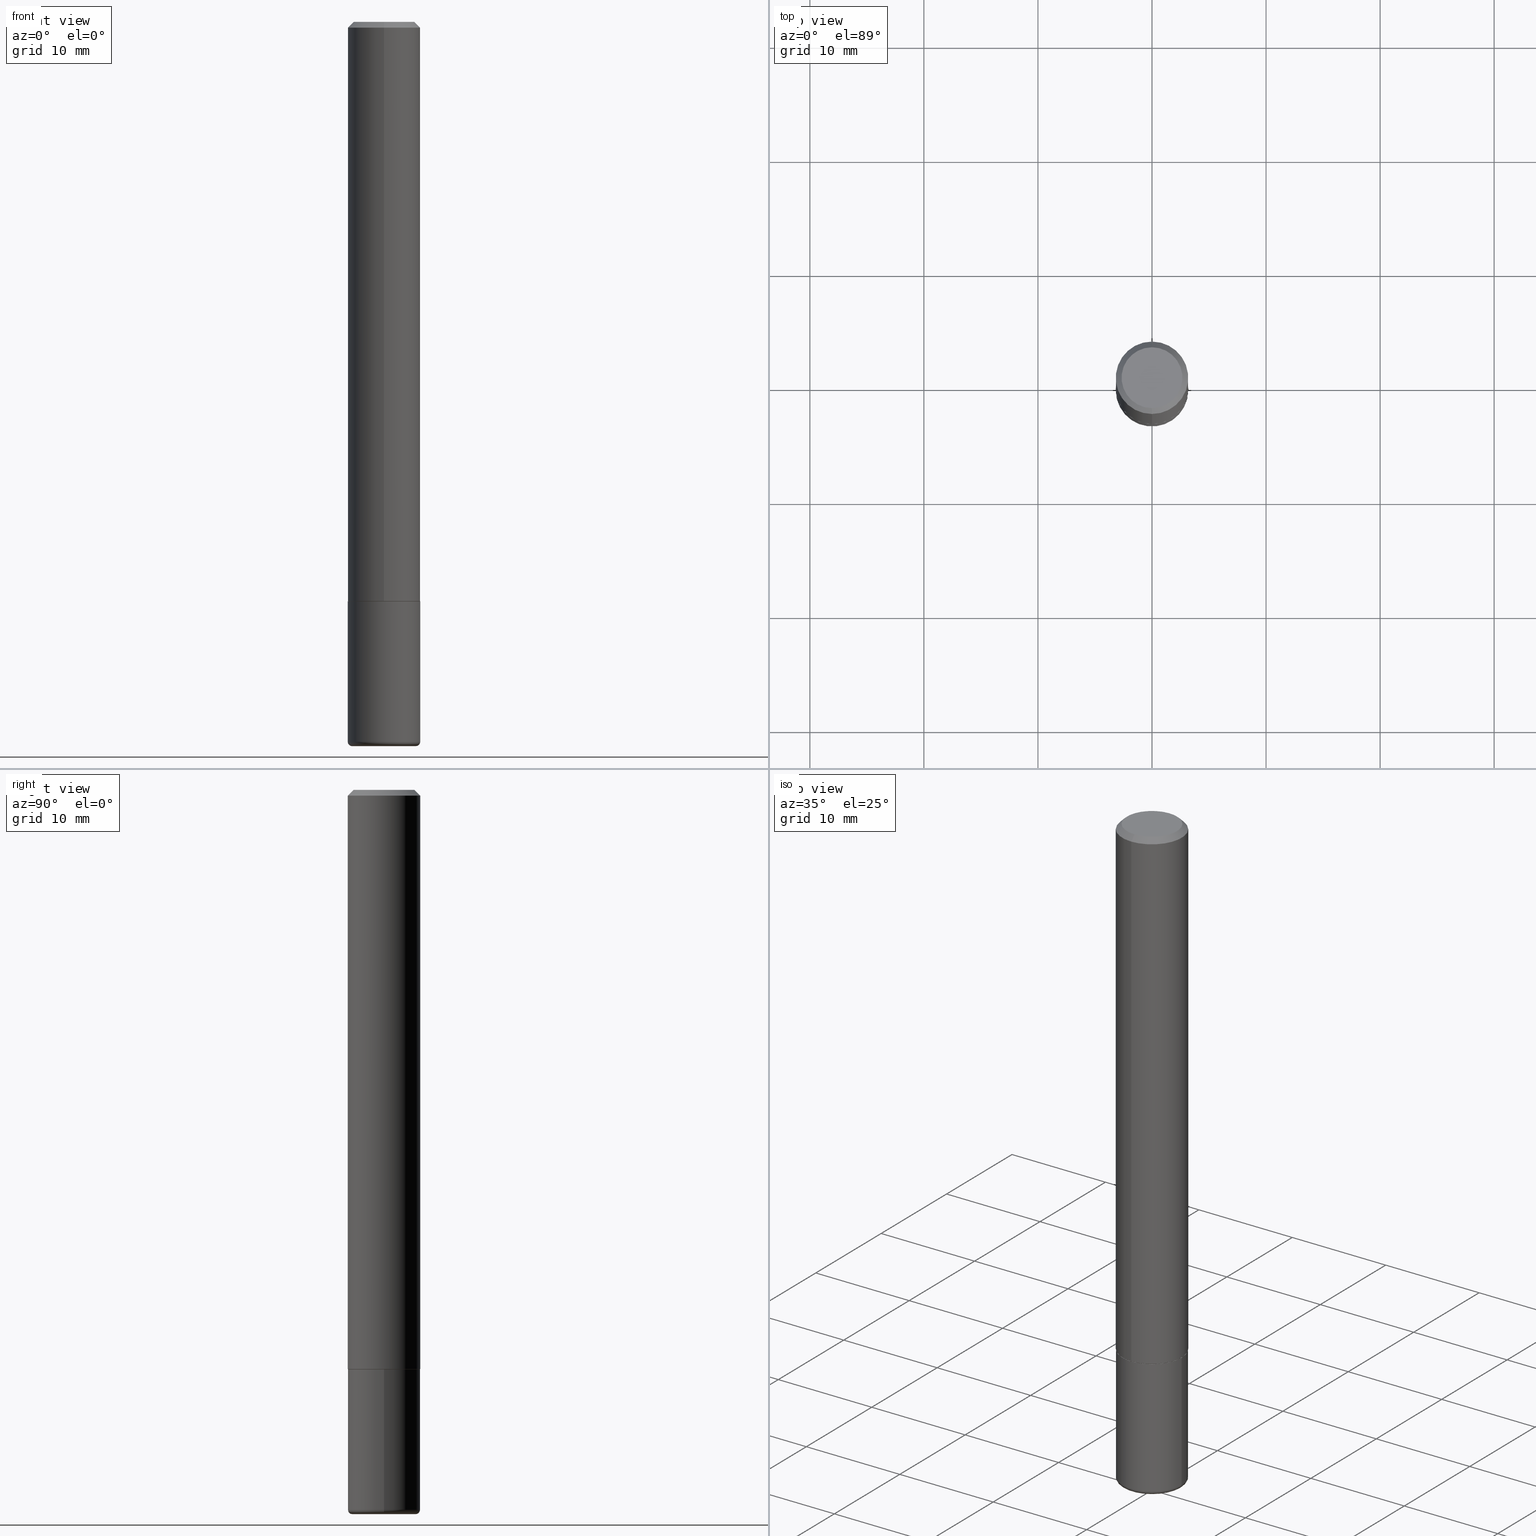
[diagram: canonical four-view strip — front | top / right | iso, engineering-drawing reading convention]
A machine part, canonical four-view strip (front | top / right | iso — engineering-drawing reading convention). The complete STEP part file that produces these views, byte-faithful:
ISO-10303-21;
HEADER;
FILE_DESCRIPTION (( 'STEP AP203' ),
    '1' );
FILE_NAME ('37185.STEP',
    '2024-03-01T21:32:21',
    ( '' ),
    ( '' ),
    'SwSTEP 2.0',
    'SolidWorks 2023',
    '' );
FILE_SCHEMA (( 'CONFIG_CONTROL_DESIGN' ));
ENDSEC;

DATA;
#1 = PERSON_AND_ORGANIZATION ( #67, #317 ) ;
#2 = CARTESIAN_POINT ( 'NONE',  ( 4.891055843871264462E-31, -6.982793363447569119E-17, -0.02000000000000002470 ) ) ;
#3 = ORIENTED_EDGE ( 'NONE', *, *, #380, .T. ) ;
#4 = DIRECTION ( 'NONE',  ( 0.000000000000000000, 0.000000000000000000, 1.000000000000000000 ) ) ;
#5 = EDGE_LOOP ( 'NONE', ( #384, #319, #265, #154 ) ) ;
#6 = APPLICATION_PROTOCOL_DEFINITION ( 'international standard', 'config_control_design', 1994, #239 ) ;
#7 = CALENDAR_DATE ( 2024, 1, 3 ) ;
#8 = CIRCLE ( 'NONE', #136, 0.1049999999999999406 ) ;
#9 = APPROVAL_PERSON_ORGANIZATION ( #22, #197, #87 ) ;
#10 = ORIENTED_EDGE ( 'NONE', *, *, #362, .T. ) ;
#11 = MANIFOLD_SOLID_BREP ( 'Body-Move/Copy2[1]', #114 ) ;
#12 = PLANE ( 'NONE',  #104 ) ;
#13 = VECTOR ( 'NONE', #21, 39.37007874015748143 ) ;
#14 = PRODUCT_DEFINITION ( 'UNKNOWN', '', #200, #173 ) ;
#15 = APPROVAL_STATUS ( 'not_yet_approved' ) ;
#16 = CIRCLE ( 'NONE', #190, 0.1100000000000000283 ) ;
#17 = AXIS2_PLACEMENT_3D ( 'NONE', #86, #339, #179 ) ;
#18 = ADVANCED_FACE ( 'NONE', ( #57 ), #124, .T. ) ;
#19 = VERTEX_POINT ( 'NONE', #110 ) ;
#20 = EDGE_CURVE ( 'NONE', #50, #19, #78, .T. ) ;
#21 = DIRECTION ( 'NONE',  ( 5.024295867788490741E-15, 0.7071067811866103003, 0.7071067811864847341 ) ) ;
#22 = PERSON_AND_ORGANIZATION ( #67, #317 ) ;
#23 = EDGE_CURVE ( 'NONE', #291, #413, #374, .T. ) ;
#24 = FACE_OUTER_BOUND ( 'NONE', #112, .T. ) ;
#25 = LINE ( 'NONE', #410, #307 ) ;
#26 = VERTEX_POINT ( 'NONE', #361 ) ;
#27 = EDGE_CURVE ( 'NONE', #413, #26, #337, .T. ) ;
#28 = COORDINATED_UNIVERSAL_TIME_OFFSET ( 5, 0, .BEHIND. ) ;
#29 = DIRECTION ( 'NONE',  ( -2.445527921935629516E-29, 3.491396681723780295E-15, 1.000000000000000000 ) ) ;
#30 = CARTESIAN_POINT ( 'NONE',  ( 0.1100000000000000006, -9.444457021570706649E-15, -2.484999999999999876 ) ) ;
#31 = ORIENTED_EDGE ( 'NONE', *, *, #120, .F. ) ;
#32 = PERSON_AND_ORGANIZATION ( #67, #317 ) ;
#33 = AXIS2_PLACEMENT_3D ( 'NONE', #370, #159, #328 ) ;
#34 = CARTESIAN_POINT ( 'NONE',  ( 4.888610315949323001E-29, -6.979301966765836019E-15, -1.998999999999999888 ) ) ;
#35 = VERTEX_POINT ( 'NONE', #330 ) ;
#36 = PERSON_AND_ORGANIZATION ( #67, #317 ) ;
#37 = ADVANCED_FACE ( 'NONE', ( #169 ), #12, .F. ) ;
#38 = ORIENTED_EDGE ( 'NONE', *, *, #366, .T. ) ;
#39 = PERSON_AND_ORGANIZATION_ROLE ( 'creator' ) ;
#40 = ORIENTED_EDGE ( 'NONE', *, *, #235, .T. ) ;
#41 = DIRECTION ( 'NONE',  ( -6.982962677686265133E-15, -1.000000000000000000, 3.491396681723779900E-15 ) ) ;
#42 = APPROVAL_ROLE ( '' ) ;
#43 = CC_DESIGN_APPROVAL ( #197, ( #14 ) ) ;
#44 = AXIS2_PLACEMENT_3D ( 'NONE', #274, #301, #146 ) ;
#45 = EDGE_CURVE ( 'NONE', #161, #127, #55, .T. ) ;
#46 = FACE_OUTER_BOUND ( 'NONE', #358, .T. ) ;
#47 = DIRECTION ( 'NONE',  ( 2.438088387897960049E-29, -3.491481338843145188E-15, -1.000000000000000000 ) ) ;
#48 = TOROIDAL_SURFACE ( 'NONE', #234, 0.1100000000000000006, 0.01500000000000011394 ) ;
#49 = DIRECTION ( 'NONE',  ( 4.937700262164540942E-15, 0.7071067811865441310, -0.7071067811865509034 ) ) ;
#50 = VERTEX_POINT ( 'NONE', #309 ) ;
#51 =( CONVERSION_BASED_UNIT ( 'INCH', #237 ) LENGTH_UNIT ( ) NAMED_UNIT ( #377 ) );
#52 = CARTESIAN_POINT ( 'NONE',  ( 4.891055843871264462E-31, -6.982793363447569119E-17, -0.02000000000000002470 ) ) ;
#53 = LINE ( 'NONE', #152, #13 ) ;
#54 = CARTESIAN_POINT ( 'NONE',  ( 6.113672015462842613E-29, -8.728703347107864943E-15, -2.500000000000000000 ) ) ;
#55 = CIRCLE ( 'NONE', #298, 0.1249999999999999584 ) ;
#56 = CARTESIAN_POINT ( 'NONE',  ( 4.891055843871259032E-29, -6.982793363447559801E-15, -2.000000000000000000 ) ) ;
#57 = FACE_OUTER_BOUND ( 'NONE', #94, .T. ) ;
#58 = CARTESIAN_POINT ( 'NONE',  ( 8.881784197001508703E-16, 0.1249999999999932415, -1.999000000000000554 ) ) ;
#59 = ORIENTED_EDGE ( 'NONE', *, *, #144, .F. ) ;
#60 = EDGE_CURVE ( 'NONE', #69, #333, #371, .T. ) ;
#61 = CARTESIAN_POINT ( 'NONE',  ( 0.000000000000000000, 0.000000000000000000, 0.000000000000000000 ) ) ;
#62 = DIRECTION ( 'NONE',  ( -6.982962677686265922E-15, -1.000000000000000000, 3.483106191921936738E-15 ) ) ;
#63 = EDGE_LOOP ( 'NONE', ( #396, #38, #228, #347 ) ) ;
#64 = ADVANCED_FACE ( 'NONE', ( #256 ), #247, .F. ) ;
#65 = AXIS2_PLACEMENT_3D ( 'NONE', #245, #340, #405 ) ;
#66 = AXIS2_PLACEMENT_3D ( 'NONE', #310, #91, #343 ) ;
#67 = PERSON ( 'UNSPECIFIED', 'UNSPECIFIED', 'UNSPECIFIED', ('UNSPECIFIED'), ('UNSPECIFIED'), ('UNSPECIFIED') ) ;
#68 = CARTESIAN_POINT ( 'NONE',  ( 6.113672015462842613E-29, -8.728703347107864943E-15, -2.500000000000000000 ) ) ;
#69 = VERTEX_POINT ( 'NONE', #58 ) ;
#70 = ORIENTED_EDGE ( 'NONE', *, *, #362, .F. ) ;
#71 = DIRECTION ( 'NONE',  ( 2.445527921935629516E-29, -3.491396681723780295E-15, -1.000000000000000000 ) ) ;
#72 = PERSON_AND_ORGANIZATION_ROLE ( 'design_supplier' ) ;
#73 = AXIS2_PLACEMENT_3D ( 'NONE', #395, #290, #158 ) ;
#74 = AXIS2_PLACEMENT_3D ( 'NONE', #402, #255, #100 ) ;
#75 = APPROVAL ( #311, 'UNSPECIFIED' ) ;
#76 = DIRECTION ( 'NONE',  ( 1.000000000000000000, -6.982962677686270655E-15, 0.000000000000000000 ) ) ;
#77 = EDGE_LOOP ( 'NONE', ( #130, #262, #238, #389 ) ) ;
#78 = CIRCLE ( 'NONE', #33, 0.1239999999999999991 ) ;
#79 = AXIS2_PLACEMENT_3D ( 'NONE', #352, #4, #131 ) ;
#80 =( LENGTH_UNIT ( ) NAMED_UNIT ( * ) SI_UNIT ( $, .METRE. ) );
#81 = DIRECTION ( 'NONE',  ( -2.445527921935629516E-29, 3.491396681723780295E-15, 1.000000000000000000 ) ) ;
#82 = AXIS2_PLACEMENT_3D ( 'NONE', #56, #29, #183 ) ;
#83 = CONICAL_SURFACE ( 'NONE', #177, 0.1239999999999999991, 0.7853981633975336552 ) ;
#84 = DIRECTION ( 'NONE',  ( -2.445468806185136597E-29, 3.491481338843145583E-15, 1.000000000000000000 ) ) ;
#85 = EDGE_LOOP ( 'NONE', ( #261, #225, #123, #321 ) ) ;
#86 = CARTESIAN_POINT ( 'NONE',  ( 6.076989983370064174E-29, -8.676331127025216680E-15, -2.484999999999999876 ) ) ;
#87 = APPROVAL_ROLE ( '' ) ;
#88 = CARTESIAN_POINT ( 'NONE',  ( -0.1250000000000000000, 8.881784197001252323E-16, -6.148668862818632227E-30 ) ) ;
#89 = DIRECTION ( 'NONE',  ( -4.937700262164969294E-15, -0.7071067811866054154, 0.7071067811864896191 ) ) ;
#90 = CARTESIAN_POINT ( 'NONE',  ( 8.728703347107834374E-16, 0.1249999999999999029, -0.02000000000000046185 ) ) ;
#91 = DIRECTION ( 'NONE',  ( -2.445468806185136597E-29, 3.491481338843145583E-15, 1.000000000000000000 ) ) ;
#92 = CLOSED_SHELL ( 'NONE', ( #229, #208, #285, #148, #18, #408, #37, #302 ) ) ;
#93 = DATE_TIME_ROLE ( 'creation_date' ) ;
#94 = EDGE_LOOP ( 'NONE', ( #286, #356, #280, #360 ) ) ;
#95 = ORIENTED_EDGE ( 'NONE', *, *, #336, .F. ) ;
#96 = DIRECTION ( 'NONE',  ( -2.445527921935629516E-29, 3.491396681723780295E-15, 1.000000000000000000 ) ) ;
#97 = EDGE_CURVE ( 'NONE', #35, #291, #244, .T. ) ;
#98 = ORIENTED_EDGE ( 'NONE', *, *, #202, .T. ) ;
#99 = DATE_AND_TIME ( #188, #270 ) ;
#100 = DIRECTION ( 'NONE',  ( 1.000000000000000000, -6.982962677686271444E-15, 0.000000000000000000 ) ) ;
#101 = DIRECTION ( 'NONE',  ( -4.851104656540957175E-15, -0.7071067811865490160, -0.7071067811865460184 ) ) ;
#102 = ORIENTED_EDGE ( 'NONE', *, *, #143, .T. ) ;
#103 = COORDINATED_UNIVERSAL_TIME_OFFSET ( 5, 0, .BEHIND. ) ;
#104 = AXIS2_PLACEMENT_3D ( 'NONE', #232, #251, #186 ) ;
#105 = CARTESIAN_POINT ( 'NONE',  ( -8.575622497214406564E-16, -0.1250000000000000278, -0.01999999999999959102 ) ) ;
#106 = ORIENTED_EDGE ( 'NONE', *, *, #368, .T. ) ;
#107 = EDGE_LOOP ( 'NONE', ( #289, #113, #3, #323 ) ) ;
#108 = DIRECTION ( 'NONE',  ( 1.000000000000000000, -6.982962677686264344E-15, 4.883557194083111780E-29 ) ) ;
#109 = EDGE_CURVE ( 'NONE', #351, #267, #8, .T. ) ;
#110 = CARTESIAN_POINT ( 'NONE',  ( 8.846257060213743279E-16, 0.1239999999999930186, -2.000000000000000444 ) ) ;
#111 = VECTOR ( 'NONE', #335, 39.37007874015748143 ) ;
#112 = EDGE_LOOP ( 'NONE', ( #201, #191, #134, #327 ) ) ;
#113 = ORIENTED_EDGE ( 'NONE', *, *, #292, .T. ) ;
#114 = CLOSED_SHELL ( 'NONE', ( #294, #174, #64, #168, #163, #372 ) ) ;
#115 = COORDINATED_UNIVERSAL_TIME_OFFSET ( 5, 0, .BEHIND. ) ;
#116 = FACE_OUTER_BOUND ( 'NONE', #160, .T. ) ;
#117 = DIRECTION ( 'NONE',  ( -1.000000000000000000, 6.982962677686265922E-15, -4.876176775795935793E-29 ) ) ;
#118 = AXIS2_PLACEMENT_3D ( 'NONE', #407, #369, #206 ) ;
#119 = APPROVAL_PERSON_ORGANIZATION ( #348, #75, #359 ) ;
#120 = EDGE_CURVE ( 'NONE', #139, #35, #16, .T. ) ;
#121 = DIRECTION ( 'NONE',  ( -1.000000000000000000, 6.982962677686265922E-15, -4.876176775795935793E-29 ) ) ;
#122 = COORDINATED_UNIVERSAL_TIME_OFFSET ( 5, 0, .BEHIND. ) ;
#123 = ORIENTED_EDGE ( 'NONE', *, *, #326, .F. ) ;
#124 = CYLINDRICAL_SURFACE ( 'NONE', #149, 0.1250000000000001110 ) ;
#125 = LOCAL_TIME ( 16, 32, 21.00000000000000000, #103 ) ;
#126 = DIRECTION ( 'NONE',  ( -6.982962677686265922E-15, -1.000000000000000000, 3.491396681723780295E-15 ) ) ;
#127 = VERTEX_POINT ( 'NONE', #90 ) ;
#128 = DIRECTION ( 'NONE',  ( -2.445468806185136597E-29, 3.491481338843145583E-15, 1.000000000000000000 ) ) ;
#129 = CC_DESIGN_PERSON_AND_ORGANIZATION_ASSIGNMENT ( #1, #72, ( #200 ) ) ;
#130 = ORIENTED_EDGE ( 'NONE', *, *, #202, .F. ) ;
#131 = DIRECTION ( 'NONE',  ( 1.000000000000000000, 0.000000000000000000, 0.000000000000000000 ) ) ;
#132 = CYLINDRICAL_SURFACE ( 'NONE', #341, 0.1250000000000000000 ) ;
#133 = APPLICATION_PROTOCOL_DEFINITION ( 'international standard', 'config_control_design', 1994, #172 ) ;
#134 = ORIENTED_EDGE ( 'NONE', *, *, #235, .F. ) ;
#135 = MECHANICAL_CONTEXT ( 'NONE', #239, 'mechanical' ) ;
#136 = AXIS2_PLACEMENT_3D ( 'NONE', #388, #181, #126 ) ;
#137 = COORDINATED_UNIVERSAL_TIME_OFFSET ( 5, 0, .BEHIND. ) ;
#138 = CARTESIAN_POINT ( 'NONE',  ( 0.000000000000000000, 0.000000000000000000, 0.000000000000000000 ) ) ;
#139 = VERTEX_POINT ( 'NONE', #151 ) ;
#140 = CC_DESIGN_PERSON_AND_ORGANIZATION_ASSIGNMENT ( #226, #39, ( #14 ) ) ;
#141 = CIRCLE ( 'NONE', #364, 0.1049999999999999406 ) ;
#142 = EDGE_CURVE ( 'NONE', #139, #254, #415, .T. ) ;
#143 = EDGE_CURVE ( 'NONE', #333, #69, #221, .T. ) ;
#144 = EDGE_CURVE ( 'NONE', #267, #351, #141, .T. ) ;
#145 = CYLINDRICAL_SURFACE ( 'NONE', #65, 0.1250000000000000000 ) ;
#146 = DIRECTION ( 'NONE',  ( 1.000000000000000000, -6.982962677686270655E-15, 0.000000000000000000 ) ) ;
#147 = PLANE ( 'NONE',  #180 ) ;
#148 = ADVANCED_FACE ( 'NONE', ( #350 ), #230, .T. ) ;
#149 = AXIS2_PLACEMENT_3D ( 'NONE', #382, #272, #41 ) ;
#150 = VECTOR ( 'NONE', #49, 39.37007874015748143 ) ;
#151 = CARTESIAN_POINT ( 'NONE',  ( 0.1100000000000000283, -9.496829241653354912E-15, -2.500000000000000000 ) ) ;
#152 = CARTESIAN_POINT ( 'NONE',  ( 8.810729923425729363E-16, 0.1239999999999930186, -2.000000000000000444 ) ) ;
#153 = DIRECTION ( 'NONE',  ( -2.445527921935629796E-29, 3.491396681723780689E-15, 1.000000000000000000 ) ) ;
#154 = ORIENTED_EDGE ( 'NONE', *, *, #380, .F. ) ;
#155 = DATE_TIME_ROLE ( 'classification_date' ) ;
#156 = DIRECTION ( 'NONE',  ( 1.000000000000000000, -6.982962677686269077E-15, 0.000000000000000000 ) ) ;
#157 = ORIENTED_EDGE ( 'NONE', *, *, #97, .F. ) ;
#158 = DIRECTION ( 'NONE',  ( 1.000000000000000000, -6.982962677686264344E-15, 4.883557194083111780E-29 ) ) ;
#159 = DIRECTION ( 'NONE',  ( -2.445527921935629516E-29, 3.491396681723780295E-15, 1.000000000000000000 ) ) ;
#160 = EDGE_LOOP ( 'NONE', ( #260, #257 ) ) ;
#161 = VERTEX_POINT ( 'NONE', #375 ) ;
#162 = APPROVAL_DATE_TIME ( #414, #197 ) ;
#163 = ADVANCED_FACE ( 'NONE', ( #349 ), #316, .T. ) ;
#164 = EDGE_LOOP ( 'NONE', ( #157, #10, #193, #218 ) ) ;
#165 = AXIS2_PLACEMENT_3D ( 'NONE', #34, #283, #417 ) ;
#166 = CC_DESIGN_APPROVAL ( #75, ( #200 ) ) ;
#167 = SHAPE_DEFINITION_REPRESENTATION ( #329, #334 ) ;
#168 = ADVANCED_FACE ( 'NONE', ( #287 ), #132, .T. ) ;
#169 = FACE_OUTER_BOUND ( 'NONE', #222, .T. ) ;
#170 = CIRCLE ( 'NONE', #250, 0.1249999999999999584 ) ;
#171 = UNCERTAINTY_MEASURE_WITH_UNIT (LENGTH_MEASURE( 1.000000000000000082E-05 ), #51, 'distance_accuracy_value', 'NONE');
#172 = APPLICATION_CONTEXT ( 'configuration controlled 3d designs of mechanical parts and assemblies' ) ;
#173 = DESIGN_CONTEXT ( 'detailed design', #172, 'design' ) ;
#174 = ADVANCED_FACE ( 'NONE', ( #227 ), #48, .T. ) ;
#175 = DIRECTION ( 'NONE',  ( -6.982962677686265922E-15, -1.000000000000000000, 4.406206441393973340E-15 ) ) ;
#176 = AXIS2_PLACEMENT_3D ( 'NONE', #216, #346, #121 ) ;
#177 = AXIS2_PLACEMENT_3D ( 'NONE', #241, #81, #207 ) ;
#178 = FACE_OUTER_BOUND ( 'NONE', #107, .T. ) ;
#179 = DIRECTION ( 'NONE',  ( 1.000000000000000000, -6.982962677686271444E-15, 0.000000000000000000 ) ) ;
#180 = AXIS2_PLACEMENT_3D ( 'NONE', #54, #47, #117 ) ;
#181 = DIRECTION ( 'NONE',  ( -2.445527921935629516E-29, 3.491396681723780295E-15, 1.000000000000000000 ) ) ;
#182 = CARTESIAN_POINT ( 'NONE',  ( 0.1250000000000000555, -9.549201461736000019E-15, -2.484999999999999876 ) ) ;
#183 = DIRECTION ( 'NONE',  ( -6.982962677686265922E-15, -1.000000000000000000, 4.406206441393973340E-15 ) ) ;
#184 = LINE ( 'NONE', #246, #299 ) ;
#185 = DIRECTION ( 'NONE',  ( 2.445527921935629516E-29, -3.491396681723780295E-15, -1.000000000000000000 ) ) ;
#186 = DIRECTION ( 'NONE',  ( -6.982962677686265922E-15, -1.000000000000000000, 3.491396681723780689E-15 ) ) ;
#187 = PRODUCT_RELATED_PRODUCT_CATEGORY ( 'detail', '', ( #363 ) ) ;
#188 = CALENDAR_DATE ( 2024, 1, 3 ) ;
#189 = DIRECTION ( 'NONE',  ( -2.445468806185136597E-29, 3.491481338843145583E-15, 1.000000000000000000 ) ) ;
#190 = AXIS2_PLACEMENT_3D ( 'NONE', #68, #189, #156 ) ;
#191 = ORIENTED_EDGE ( 'NONE', *, *, #23, .T. ) ;
#192 = CALENDAR_DATE ( 2024, 1, 3 ) ;
#193 = ORIENTED_EDGE ( 'NONE', *, *, #142, .T. ) ;
#194 = LINE ( 'NONE', #105, #403 ) ;
#195 = DIRECTION ( 'NONE',  ( -6.982962677686265133E-15, -1.000000000000000000, 3.491396681723779900E-15 ) ) ;
#196 = CONICAL_SURFACE ( 'NONE', #269, 0.1239999999999999991, 0.7853981633975336552 ) ;
#197 = APPROVAL ( #15, 'UNSPECIFIED' ) ;
#198 = DIRECTION ( 'NONE',  ( -6.982962677686265922E-15, -1.000000000000000000, 3.483106191921936738E-15 ) ) ;
#199 = AXIS2_PLACEMENT_3D ( 'NONE', #138, #357, #195 ) ;
#200 = PRODUCT_DEFINITION_FORMATION_WITH_SPECIFIED_SOURCE ( 'ANY', '', #363, .NOT_KNOWN. ) ;
#201 = ORIENTED_EDGE ( 'NONE', *, *, #326, .T. ) ;
#202 = EDGE_CURVE ( 'NONE', #267, #161, #194, .T. ) ;
#203 = CARTESIAN_POINT ( 'NONE',  ( 0.1250000000000000000, -8.728703347107833388E-16, 6.095220969744919741E-30 ) ) ;
#204 =( NAMED_UNIT ( * ) PLANE_ANGLE_UNIT ( ) SI_UNIT ( $, .RADIAN. ) );
#205 = AXIS2_PLACEMENT_3D ( 'NONE', #52, #185, #312 ) ;
#206 = DIRECTION ( 'NONE',  ( 6.982962677686265922E-15, 1.000000000000000000, -3.491396681723780689E-15 ) ) ;
#207 = DIRECTION ( 'NONE',  ( -6.982962677686265922E-15, -1.000000000000000000, 4.406206441393973340E-15 ) ) ;
#208 = ADVANCED_FACE ( 'NONE', ( #354 ), #224, .T. ) ;
#209 = DIRECTION ( 'NONE',  ( -2.445527921935629796E-29, 3.491396681723780689E-15, 1.000000000000000000 ) ) ;
#210 = CARTESIAN_POINT ( 'NONE',  ( -8.728703347107839305E-16, -0.1250000000000001110, 4.364245852154728820E-16 ) ) ;
#211 = AXIS2_PLACEMENT_3D ( 'NONE', #318, #71, #399 ) ;
#212 = LOCAL_TIME ( 16, 32, 21.00000000000000000, #137 ) ;
#213 = CARTESIAN_POINT ( 'NONE',  ( 4.888610315949323001E-29, -6.979301966765836019E-15, -1.998999999999999888 ) ) ;
#214 = APPROVAL_DATE_TIME ( #412, #331 ) ;
#215 = CC_DESIGN_DATE_AND_TIME_ASSIGNMENT ( #386, #93, ( #14 ) ) ;
#216 = CARTESIAN_POINT ( 'NONE',  ( 4.890937612370273194E-29, -6.982962677686291165E-15, -2.000000000000000000 ) ) ;
#217 = DIRECTION ( 'NONE',  ( -6.982962677686265922E-15, -1.000000000000000000, 3.491396681723780295E-15 ) ) ;
#218 = ORIENTED_EDGE ( 'NONE', *, *, #366, .F. ) ;
#219 = PERSON_AND_ORGANIZATION_ROLE ( 'classification_officer' ) ;
#220 = DIRECTION ( 'NONE',  ( -2.445468806185136597E-29, 3.491481338843145583E-15, 1.000000000000000000 ) ) ;
#221 = CIRCLE ( 'NONE', #165, 0.1250000000000002498 ) ;
#222 = EDGE_LOOP ( 'NONE', ( #252, #284 ) ) ;
#223 = CALENDAR_DATE ( 2024, 1, 3 ) ;
#224 = CYLINDRICAL_SURFACE ( 'NONE', #199, 0.1250000000000001110 ) ;
#225 = ORIENTED_EDGE ( 'NONE', *, *, #97, .T. ) ;
#226 = PERSON_AND_ORGANIZATION ( #67, #317 ) ;
#227 = FACE_OUTER_BOUND ( 'NONE', #85, .T. ) ;
#228 = ORIENTED_EDGE ( 'NONE', *, *, #242, .T. ) ;
#229 = ADVANCED_FACE ( 'NONE', ( #322 ), #196, .T. ) ;
#230 = CONICAL_SURFACE ( 'NONE', #211, 0.1249999999999999584, 0.7853981633974469467 ) ;
#231 = SECURITY_CLASSIFICATION ( '', '', #390 ) ;
#232 = CARTESIAN_POINT ( 'NONE',  ( 4.891055843871259032E-29, -6.982793363447559801E-15, -2.000000000000000000 ) ) ;
#233 = DIRECTION ( 'NONE',  ( -2.445527921935629516E-29, 3.491396681723780295E-15, 1.000000000000000000 ) ) ;
#234 = AXIS2_PLACEMENT_3D ( 'NONE', #259, #220, #108 ) ;
#235 = EDGE_CURVE ( 'NONE', #26, #413, #379, .T. ) ;
#236 = APPROVAL_PERSON_ORGANIZATION ( #36, #331, #42 ) ;
#237 = LENGTH_MEASURE_WITH_UNIT ( LENGTH_MEASURE( 0.02539999999999999897 ), #80 );
#238 = ORIENTED_EDGE ( 'NONE', *, *, #336, .T. ) ;
#239 = APPLICATION_CONTEXT ( 'configuration controlled 3d designs of mechanical parts and assemblies' ) ;
#240 = PLANE ( 'NONE',  #118 ) ;
#241 = CARTESIAN_POINT ( 'NONE',  ( 4.891055843871259032E-29, -6.982793363447559801E-15, -2.000000000000000000 ) ) ;
#242 = EDGE_CURVE ( 'NONE', #254, #26, #273, .T. ) ;
#243 = DIRECTION ( 'NONE',  ( -2.445468806185136877E-29, 3.491481338843145188E-15, 1.000000000000000000 ) ) ;
#244 = CIRCLE ( 'NONE', #305, 0.01500000000000011394 ) ;
#245 = CARTESIAN_POINT ( 'NONE',  ( 0.000000000000000000, 0.000000000000000000, 0.000000000000000000 ) ) ;
#246 = CARTESIAN_POINT ( 'NONE',  ( 8.881784197001258240E-16, 0.1250000000000001110, -4.364245852154728820E-16 ) ) ;
#247 = PLANE ( 'NONE',  #176 ) ;
#248 = CARTESIAN_POINT ( 'NONE',  ( 8.728703347107834374E-16, 0.1249999999999999029, -0.02000000000000046185 ) ) ;
#249 = APPROVAL_DATE_TIME ( #99, #75 ) ;
#250 = AXIS2_PLACEMENT_3D ( 'NONE', #400, #233, #198 ) ;
#251 = DIRECTION ( 'NONE',  ( -2.445527921935628955E-29, 3.491396681723780689E-15, 1.000000000000000000 ) ) ;
#252 = ORIENTED_EDGE ( 'NONE', *, *, #20, .F. ) ;
#253 = CARTESIAN_POINT ( 'NONE',  ( -1.356822259440641185E-45, 1.937088794533382726E-31, 5.548177337377198142E-17 ) ) ;
#254 = VERTEX_POINT ( 'NONE', #182 ) ;
#255 = DIRECTION ( 'NONE',  ( -2.445468806185136597E-29, 3.491481338843145583E-15, 1.000000000000000000 ) ) ;
#256 = FACE_OUTER_BOUND ( 'NONE', #314, .T. ) ;
#257 = ORIENTED_EDGE ( 'NONE', *, *, #144, .T. ) ;
#258 = PERSON_AND_ORGANIZATION ( #67, #317 ) ;
#259 = CARTESIAN_POINT ( 'NONE',  ( 6.076989983370064174E-29, -8.676331127025216680E-15, -2.484999999999999876 ) ) ;
#260 = ORIENTED_EDGE ( 'NONE', *, *, #109, .T. ) ;
#261 = ORIENTED_EDGE ( 'NONE', *, *, #120, .T. ) ;
#262 = ORIENTED_EDGE ( 'NONE', *, *, #109, .F. ) ;
#263 = CIRCLE ( 'NONE', #82, 0.1239999999999999991 ) ;
#264 = CIRCLE ( 'NONE', #17, 0.1249999999999999861 ) ;
#265 = ORIENTED_EDGE ( 'NONE', *, *, #143, .F. ) ;
#266 = CC_DESIGN_PERSON_AND_ORGANIZATION_ASSIGNMENT ( #258, #378, ( #200 ) ) ;
#267 = VERTEX_POINT ( 'NONE', #373 ) ;
#268 = ORIENTED_EDGE ( 'NONE', *, *, #27, .T. ) ;
#269 = AXIS2_PLACEMENT_3D ( 'NONE', #293, #303, #175 ) ;
#270 = LOCAL_TIME ( 16, 32, 21.00000000000000000, #122 ) ;
#271 = CARTESIAN_POINT ( 'NONE',  ( -0.1250000000000000555, -7.788152707325091448E-15, -2.484999999999999876 ) ) ;
#272 = DIRECTION ( 'NONE',  ( -2.445527921935629516E-29, 3.491396681723780295E-15, 1.000000000000000000 ) ) ;
#273 = LINE ( 'NONE', #203, #111 ) ;
#274 = CARTESIAN_POINT ( 'NONE',  ( 4.890937612370273194E-29, -6.982962677686291165E-15, -2.000000000000000000 ) ) ;
#275 = LOCAL_TIME ( 16, 32, 21.00000000000000000, #115 ) ;
#276 = CARTESIAN_POINT ( 'NONE',  ( 8.030407079339205337E-16, 0.1049999999999999406, -3.111148782072246978E-16 ) ) ;
#277 = DIRECTION ( 'NONE',  ( -1.000000000000000000, 7.105427357601001859E-15, 0.000000000000000000 ) ) ;
#278 = CC_DESIGN_PERSON_AND_ORGANIZATION_ASSIGNMENT ( #32, #219, ( #231 ) ) ;
#279 = LINE ( 'NONE', #210, #342 ) ;
#280 = ORIENTED_EDGE ( 'NONE', *, *, #394, .T. ) ;
#281 = MANIFOLD_SOLID_BREP ( 'Body-Move/Copy2[2]', #92 ) ;
#282 = CIRCLE ( 'NONE', #74, 0.1249999999999999861 ) ;
#283 = DIRECTION ( 'NONE',  ( -2.445527921935629516E-29, 3.491396681723780295E-15, 1.000000000000000000 ) ) ;
#284 = ORIENTED_EDGE ( 'NONE', *, *, #292, .F. ) ;
#285 = ADVANCED_FACE ( 'NONE', ( #46 ), #397, .T. ) ;
#286 = ORIENTED_EDGE ( 'NONE', *, *, #368, .F. ) ;
#287 = FACE_OUTER_BOUND ( 'NONE', #63, .T. ) ;
#288 = DIRECTION ( 'NONE',  ( -2.445527921935629516E-29, 3.491396681723780295E-15, 1.000000000000000000 ) ) ;
#289 = ORIENTED_EDGE ( 'NONE', *, *, #300, .F. ) ;
#290 = DIRECTION ( 'NONE',  ( -2.445468806185136597E-29, 3.491481338843145583E-15, 1.000000000000000000 ) ) ;
#291 = VERTEX_POINT ( 'NONE', #271 ) ;
#292 = EDGE_CURVE ( 'NONE', #19, #50, #263, .T. ) ;
#293 = CARTESIAN_POINT ( 'NONE',  ( 4.891055843871259032E-29, -6.982793363447559801E-15, -2.000000000000000000 ) ) ;
#294 = ADVANCED_FACE ( 'NONE', ( #24 ), #145, .T. ) ;
#295 = CARTESIAN_POINT ( 'NONE',  ( 4.890937612370273194E-29, -6.982962677686291165E-15, -2.000000000000000000 ) ) ;
#296 = CIRCLE ( 'NONE', #66, 0.1100000000000000283 ) ;
#297 = CC_DESIGN_PERSON_AND_ORGANIZATION_ASSIGNMENT ( #401, #365, ( #363 ) ) ;
#298 = AXIS2_PLACEMENT_3D ( 'NONE', #2, #96, #62 ) ;
#299 = VECTOR ( 'NONE', #209, 39.37007874015748143 ) ;
#300 = EDGE_CURVE ( 'NONE', #19, #69, #53, .T. ) ;
#301 = DIRECTION ( 'NONE',  ( -2.445468806185136597E-29, 3.491481338843145583E-15, 1.000000000000000000 ) ) ;
#302 = ADVANCED_FACE ( 'NONE', ( #116 ), #240, .F. ) ;
#303 = DIRECTION ( 'NONE',  ( -2.445527921935629516E-29, 3.491396681723780295E-15, 1.000000000000000000 ) ) ;
#304 = FACE_OUTER_BOUND ( 'NONE', #418, .T. ) ;
#305 = AXIS2_PLACEMENT_3D ( 'NONE', #344, #313, #277 ) ;
#306 = LOCAL_TIME ( 16, 32, 21.00000000000000000, #28 ) ;
#307 = VECTOR ( 'NONE', #89, 39.37007874015748143 ) ;
#308 = EDGE_CURVE ( 'NONE', #127, #161, #170, .T. ) ;
#309 = CARTESIAN_POINT ( 'NONE',  ( -8.658873720330480207E-16, -0.1240000000000069796, -1.999999999999999334 ) ) ;
#310 = CARTESIAN_POINT ( 'NONE',  ( 6.113672015462842613E-29, -8.728703347107864943E-15, -2.500000000000000000 ) ) ;
#311 = APPROVAL_STATUS ( 'not_yet_approved' ) ;
#312 = DIRECTION ( 'NONE',  ( 6.982962677686265922E-15, 1.000000000000000000, -3.483106191921936738E-15 ) ) ;
#313 = DIRECTION ( 'NONE',  ( 7.105427357601001859E-15, 1.000000000000000000, -3.491481338843145583E-15 ) ) ;
#314 = EDGE_LOOP ( 'NONE', ( #40, #268 ) ) ;
#315 = CALENDAR_DATE ( 2024, 1, 3 ) ;
#316 = TOROIDAL_SURFACE ( 'NONE', #73, 0.1100000000000000006, 0.01500000000000011394 ) ;
#317 = ORGANIZATION ( 'UNSPECIFIED', 'UNSPECIFIED', '' ) ;
#318 = CARTESIAN_POINT ( 'NONE',  ( 4.891055843871264462E-31, -6.982793363447569119E-17, -0.02000000000000002470 ) ) ;
#319 = ORIENTED_EDGE ( 'NONE', *, *, #300, .T. ) ;
#320 = DATE_AND_TIME ( #192, #306 ) ;
#321 = ORIENTED_EDGE ( 'NONE', *, *, #142, .F. ) ;
#322 = FACE_OUTER_BOUND ( 'NONE', #5, .T. ) ;
#323 = ORIENTED_EDGE ( 'NONE', *, *, #60, .F. ) ;
#324 = APPROVAL_STATUS ( 'not_yet_approved' ) ;
#325 = AXIS2_PLACEMENT_3D ( 'NONE', #295, #84, #76 ) ;
#326 = EDGE_CURVE ( 'NONE', #254, #291, #282, .T. ) ;
#327 = ORIENTED_EDGE ( 'NONE', *, *, #242, .F. ) ;
#328 = DIRECTION ( 'NONE',  ( -6.982962677686265922E-15, -1.000000000000000000, 4.406206441393973340E-15 ) ) ;
#329 = PRODUCT_DEFINITION_SHAPE ( 'NONE', 'NONE',  #14 ) ;
#330 = CARTESIAN_POINT ( 'NONE',  ( -0.1100000000000000283, -7.867629522548422746E-15, -2.500000000000000000 ) ) ;
#331 = APPROVAL ( #324, 'UNSPECIFIED' ) ;
#332 = AXIS2_PLACEMENT_3D ( 'NONE', #213, #288, #376 ) ;
#333 = VERTEX_POINT ( 'NONE', #353 ) ;
#334 = ADVANCED_BREP_SHAPE_REPRESENTATION ( '37185', ( #11, #281, #79 ), #404 ) ;
#335 = DIRECTION ( 'NONE',  ( -2.445468806185136877E-29, 3.491481338843145188E-15, 1.000000000000000000 ) ) ;
#336 = EDGE_CURVE ( 'NONE', #351, #127, #406, .T. ) ;
#337 = CIRCLE ( 'NONE', #325, 0.1250000000000000000 ) ;
#338 = CARTESIAN_POINT ( 'NONE',  ( -0.1250000000000000000, -6.941468482655628296E-15, -2.000000000000000000 ) ) ;
#339 = DIRECTION ( 'NONE',  ( -2.445468806185136597E-29, 3.491481338843145583E-15, 1.000000000000000000 ) ) ;
#340 = DIRECTION ( 'NONE',  ( -2.445468806185136597E-29, 3.491481338843145583E-15, 1.000000000000000000 ) ) ;
#341 = AXIS2_PLACEMENT_3D ( 'NONE', #61, #128, #387 ) ;
#342 = VECTOR ( 'NONE', #153, 39.37007874015748143 ) ;
#343 = DIRECTION ( 'NONE',  ( 1.000000000000000000, -6.982962677686269077E-15, 0.000000000000000000 ) ) ;
#344 = CARTESIAN_POINT ( 'NONE',  ( -0.1100000000000000006, -7.894734117689105781E-15, -2.484999999999999876 ) ) ;
#345 = ORIENTED_EDGE ( 'NONE', *, *, #45, .T. ) ;
#346 = DIRECTION ( 'NONE',  ( 2.438088387897960049E-29, -3.491481338843145188E-15, -1.000000000000000000 ) ) ;
#347 = ORIENTED_EDGE ( 'NONE', *, *, #27, .F. ) ;
#348 = PERSON_AND_ORGANIZATION ( #67, #317 ) ;
#349 = FACE_OUTER_BOUND ( 'NONE', #164, .T. ) ;
#350 = FACE_OUTER_BOUND ( 'NONE', #77, .T. ) ;
#351 = VERTEX_POINT ( 'NONE', #276 ) ;
#352 = CARTESIAN_POINT ( 'NONE',  ( 0.000000000000000000, 0.000000000000000000, 0.000000000000000000 ) ) ;
#353 = CARTESIAN_POINT ( 'NONE',  ( -8.728703347107360072E-16, -0.1250000000000072164, -1.998999999999999444 ) ) ;
#354 = FACE_OUTER_BOUND ( 'NONE', #393, .T. ) ;
#355 = DIRECTION ( 'NONE',  ( 1.000000000000000000, -6.982962677686215435E-15, 0.000000000000000000 ) ) ;
#356 = ORIENTED_EDGE ( 'NONE', *, *, #60, .T. ) ;
#357 = DIRECTION ( 'NONE',  ( -2.445527921935629516E-29, 3.491396681723780295E-15, 1.000000000000000000 ) ) ;
#358 = EDGE_LOOP ( 'NONE', ( #59, #98, #345, #95 ) ) ;
#359 = APPROVAL_ROLE ( '' ) ;
#360 = ORIENTED_EDGE ( 'NONE', *, *, #308, .F. ) ;
#361 = CARTESIAN_POINT ( 'NONE',  ( 0.1250000000000000000, -7.855833012397075293E-15, -2.000000000000000000 ) ) ;
#362 = EDGE_CURVE ( 'NONE', #35, #139, #296, .T. ) ;
#363 = PRODUCT ( '37185', '37185', '', ( #135 ) ) ;
#364 = AXIS2_PLACEMENT_3D ( 'NONE', #253, #383, #217 ) ;
#365 = PERSON_AND_ORGANIZATION_ROLE ( 'design_owner' ) ;
#366 = EDGE_CURVE ( 'NONE', #291, #254, #264, .T. ) ;
#367 = ORIENTED_EDGE ( 'NONE', *, *, #45, .F. ) ;
#368 = EDGE_CURVE ( 'NONE', #69, #127, #184, .T. ) ;
#369 = DIRECTION ( 'NONE',  ( 2.445527921935628955E-29, -3.491396681723780689E-15, -1.000000000000000000 ) ) ;
#370 = CARTESIAN_POINT ( 'NONE',  ( 4.891055843871259032E-29, -6.982793363447559801E-15, -2.000000000000000000 ) ) ;
#371 = CIRCLE ( 'NONE', #332, 0.1250000000000002498 ) ;
#372 = ADVANCED_FACE ( 'NONE', ( #304 ), #147, .T. ) ;
#373 = CARTESIAN_POINT ( 'NONE',  ( -7.889572697437255223E-16, -0.1049999999999999406, 4.220784249547687223E-16 ) ) ;
#374 = LINE ( 'NONE', #88, #409 ) ;
#375 = CARTESIAN_POINT ( 'NONE',  ( -8.575622497214406564E-16, -0.1250000000000000278, -0.01999999999999959102 ) ) ;
#376 = DIRECTION ( 'NONE',  ( -6.982962677686265133E-15, -1.000000000000000000, 4.370956789862812472E-15 ) ) ;
#377 = DIMENSIONAL_EXPONENTS ( 1.000000000000000000, 0.000000000000000000, 0.000000000000000000, 0.000000000000000000, 0.000000000000000000, 0.000000000000000000, 0.000000000000000000 ) ;
#378 = PERSON_AND_ORGANIZATION_ROLE ( 'creator' ) ;
#379 = CIRCLE ( 'NONE', #44, 0.1250000000000000000 ) ;
#380 = EDGE_CURVE ( 'NONE', #50, #333, #25, .T. ) ;
#381 = ORIENTED_EDGE ( 'NONE', *, *, #394, .F. ) ;
#382 = CARTESIAN_POINT ( 'NONE',  ( 0.000000000000000000, 0.000000000000000000, 0.000000000000000000 ) ) ;
#383 = DIRECTION ( 'NONE',  ( -2.445527921935629516E-29, 3.491396681723780295E-15, 1.000000000000000000 ) ) ;
#384 = ORIENTED_EDGE ( 'NONE', *, *, #20, .T. ) ;
#385 =( NAMED_UNIT ( * ) SI_UNIT ( $, .STERADIAN. ) SOLID_ANGLE_UNIT ( ) );
#386 = DATE_AND_TIME ( #7, #212 ) ;
#387 = DIRECTION ( 'NONE',  ( 1.000000000000000000, -6.982962677686266711E-15, 4.876176775795935793E-29 ) ) ;
#388 = CARTESIAN_POINT ( 'NONE',  ( -1.356822259440641185E-45, 1.937088794533382726E-31, 5.548177337377198142E-17 ) ) ;
#389 = ORIENTED_EDGE ( 'NONE', *, *, #308, .T. ) ;
#390 = SECURITY_CLASSIFICATION_LEVEL ( 'unclassified' ) ;
#391 = AXIS2_PLACEMENT_3D ( 'NONE', #30, #411, #355 ) ;
#392 = CC_DESIGN_SECURITY_CLASSIFICATION ( #231, ( #200 ) ) ;
#393 = EDGE_LOOP ( 'NONE', ( #102, #106, #367, #381 ) ) ;
#394 = EDGE_CURVE ( 'NONE', #333, #161, #279, .T. ) ;
#395 = CARTESIAN_POINT ( 'NONE',  ( 6.076989983370064174E-29, -8.676331127025216680E-15, -2.484999999999999876 ) ) ;
#396 = ORIENTED_EDGE ( 'NONE', *, *, #23, .F. ) ;
#397 = CONICAL_SURFACE ( 'NONE', #205, 0.1249999999999999584, 0.7853981633974469467 ) ;
#398 = CC_DESIGN_APPROVAL ( #331, ( #231 ) ) ;
#399 = DIRECTION ( 'NONE',  ( 6.982962677686265922E-15, 1.000000000000000000, -3.483106191921936738E-15 ) ) ;
#400 = CARTESIAN_POINT ( 'NONE',  ( 4.891055843871264462E-31, -6.982793363447569119E-17, -0.02000000000000002470 ) ) ;
#401 = PERSON_AND_ORGANIZATION ( #67, #317 ) ;
#402 = CARTESIAN_POINT ( 'NONE',  ( 6.076989983370064174E-29, -8.676331127025216680E-15, -2.484999999999999876 ) ) ;
#403 = VECTOR ( 'NONE', #101, 39.37007874015748143 ) ;
#404 =( GEOMETRIC_REPRESENTATION_CONTEXT ( 3 ) GLOBAL_UNCERTAINTY_ASSIGNED_CONTEXT ( ( #171 ) ) GLOBAL_UNIT_ASSIGNED_CONTEXT ( ( #51, #204, #385 ) ) REPRESENTATION_CONTEXT ( 'NONE', 'WORKASPACE' ) );
#405 = DIRECTION ( 'NONE',  ( 1.000000000000000000, -6.982962677686266711E-15, 4.876176775795935793E-29 ) ) ;
#406 = LINE ( 'NONE', #248, #150 ) ;
#407 = CARTESIAN_POINT ( 'NONE',  ( 7.332110811570575313E-16, 0.1049999999999999406, -3.388557648941107286E-16 ) ) ;
#408 = ADVANCED_FACE ( 'NONE', ( #178 ), #83, .T. ) ;
#409 = VECTOR ( 'NONE', #243, 39.37007874015748143 ) ;
#410 = CARTESIAN_POINT ( 'NONE',  ( -8.658873720330480207E-16, -0.1240000000000069796, -1.999999999999999334 ) ) ;
#411 = DIRECTION ( 'NONE',  ( -6.982962677686266711E-15, -1.000000000000000000, 3.491481338843145583E-15 ) ) ;
#412 = DATE_AND_TIME ( #223, #125 ) ;
#413 = VERTEX_POINT ( 'NONE', #338 ) ;
#414 = DATE_AND_TIME ( #315, #275 ) ;
#415 = CIRCLE ( 'NONE', #391, 0.01500000000000011394 ) ;
#416 = CC_DESIGN_DATE_AND_TIME_ASSIGNMENT ( #320, #155, ( #231 ) ) ;
#417 = DIRECTION ( 'NONE',  ( -6.982962677686265133E-15, -1.000000000000000000, 4.370956789862812472E-15 ) ) ;
#418 = EDGE_LOOP ( 'NONE', ( #31, #70 ) ) ;
ENDSEC;
END-ISO-10303-21;
